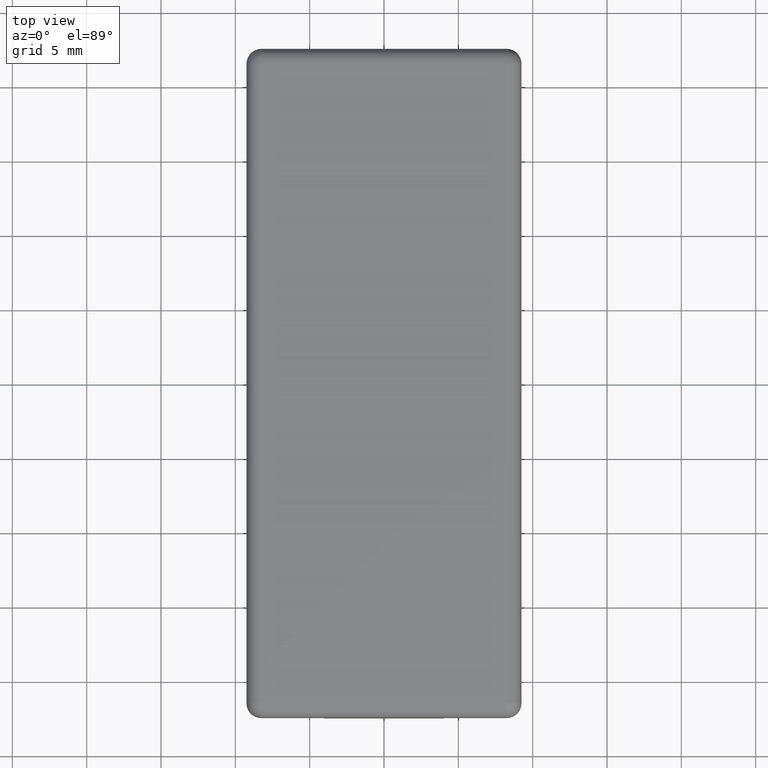
[diagram: clean part render]
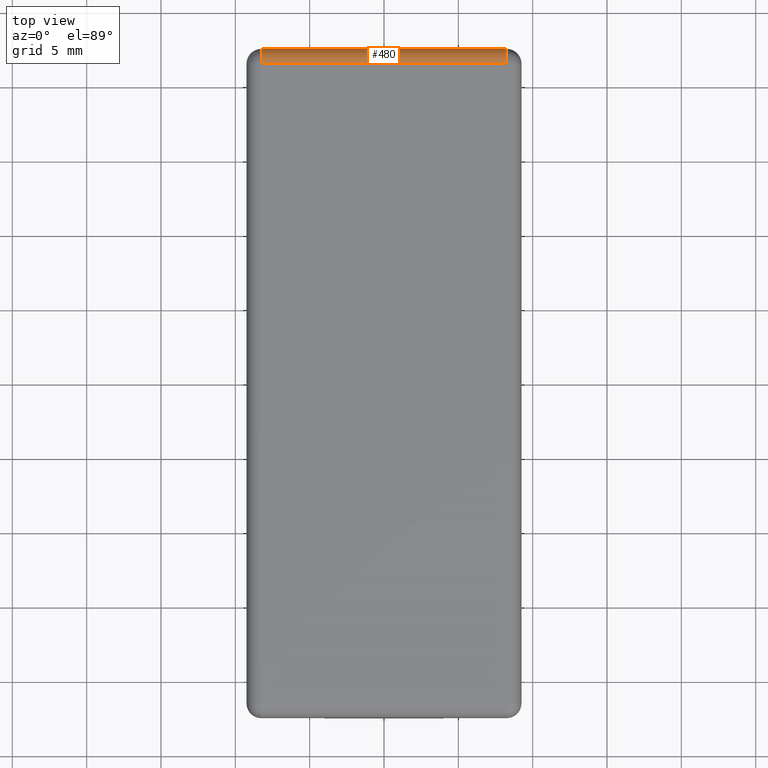
[diagram: same view with one face highlighted and labeled with its STEP entity id]
A machine part, top view. The second image highlights one B-rep face of the part: STEP entity #480.
In plain terms, the highlighted cylindrical surface (edge-blend (fillet) strip) has radius 1 mm, axis along (-1, 0, 0).
Its self-contained STEP definition (entity closure, byte-faithful):
#27=CYLINDRICAL_SURFACE('',#527,1.);
#60=FACE_OUTER_BOUND('',#94,.T.);
#94=EDGE_LOOP('',(#426,#427,#428,#429));
#126=LINE('',#752,#170);
#133=LINE('',#768,#177);
#170=VECTOR('',#606,16.4999999999304);
#177=VECTOR('',#621,16.4999999999341);
#202=CIRCLE('',#526,0.999999999996);
#203=CIRCLE('',#528,1.);
#233=VERTEX_POINT('',#748);
#235=VERTEX_POINT('',#751);
#239=VERTEX_POINT('',#763);
#240=VERTEX_POINT('',#767);
#282=EDGE_CURVE('',#235,#233,#126,.T.);
#290=EDGE_CURVE('',#239,#240,#133,.T.);
#306=EDGE_CURVE('',#240,#233,#202,.T.);
#307=EDGE_CURVE('',#235,#239,#203,.T.);
#426=ORIENTED_EDGE('',*,*,#306,.F.);
#427=ORIENTED_EDGE('',*,*,#290,.F.);
#428=ORIENTED_EDGE('',*,*,#307,.F.);
#429=ORIENTED_EDGE('',*,*,#282,.T.);
#480=ADVANCED_FACE('',(#60),#27,.T.);
#526=AXIS2_PLACEMENT_3D('',#1026,#659,#660);
#527=AXIS2_PLACEMENT_3D('',#1027,#661,#662);
#528=AXIS2_PLACEMENT_3D('',#1028,#663,#664);
#606=DIRECTION('',(1.,0.,0.));
#621=DIRECTION('',(1.,0.,0.));
#659=DIRECTION('center_axis',(1.,0.,0.));
#660=DIRECTION('ref_axis',(0.,1.,0.));
#661=DIRECTION('center_axis',(-1.,0.,0.));
#662=DIRECTION('ref_axis',(0.,0.,1.));
#663=DIRECTION('center_axis',(-1.,0.,0.));
#664=DIRECTION('ref_axis',(0.,0.,1.));
#748=CARTESIAN_POINT('',(8.24999999996317,21.4999999999141,2.5));
#751=CARTESIAN_POINT('',(-8.24999999996726,21.49999999991,2.5));
#752=CARTESIAN_POINT('',(-8.24999999996726,21.49999999991,2.5));
#763=CARTESIAN_POINT('',(-8.24999999996726,22.49999999991,1.5));
#767=CARTESIAN_POINT('',(8.2499999999668,22.49999999991,1.5));
#768=CARTESIAN_POINT('',(-8.24999999996726,22.49999999991,1.5));
#1026=CARTESIAN_POINT('Origin',(8.2499999999668,21.4999999999141,1.5));
#1027=CARTESIAN_POINT('Origin',(-8.24999999996726,21.49999999991,1.5));
#1028=CARTESIAN_POINT('Origin',(-8.24999999996726,21.49999999991,1.5));